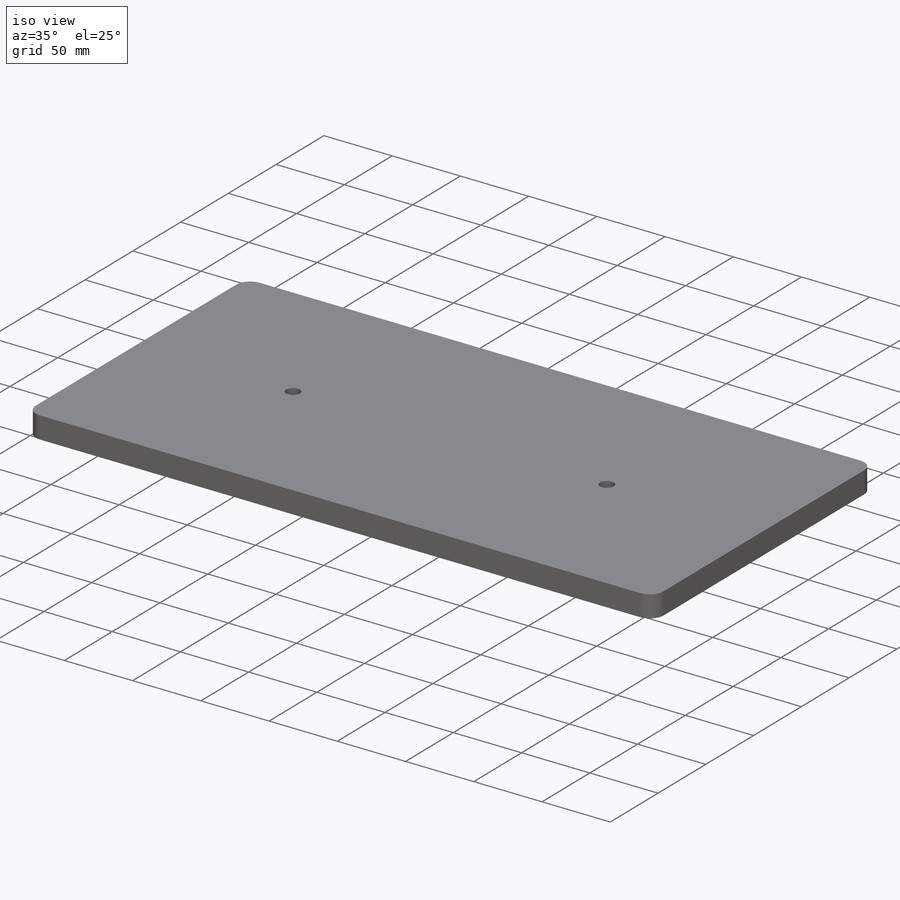
[diagram: iso view]
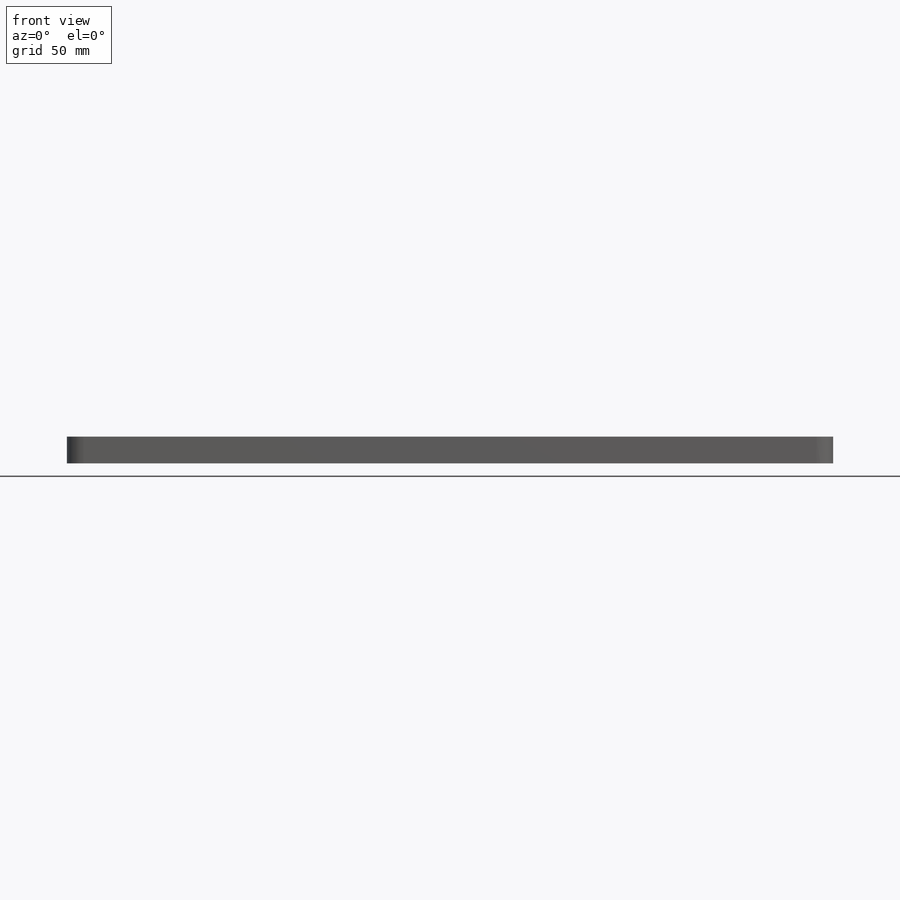
[diagram: front view]
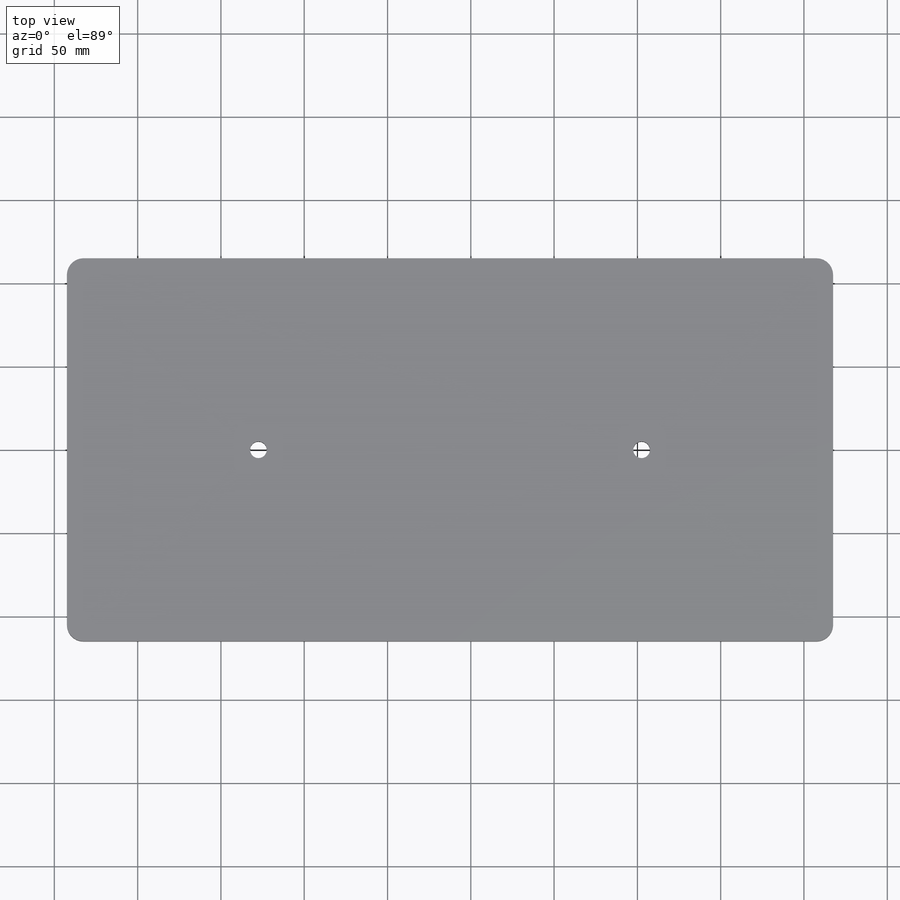
[diagram: top view]
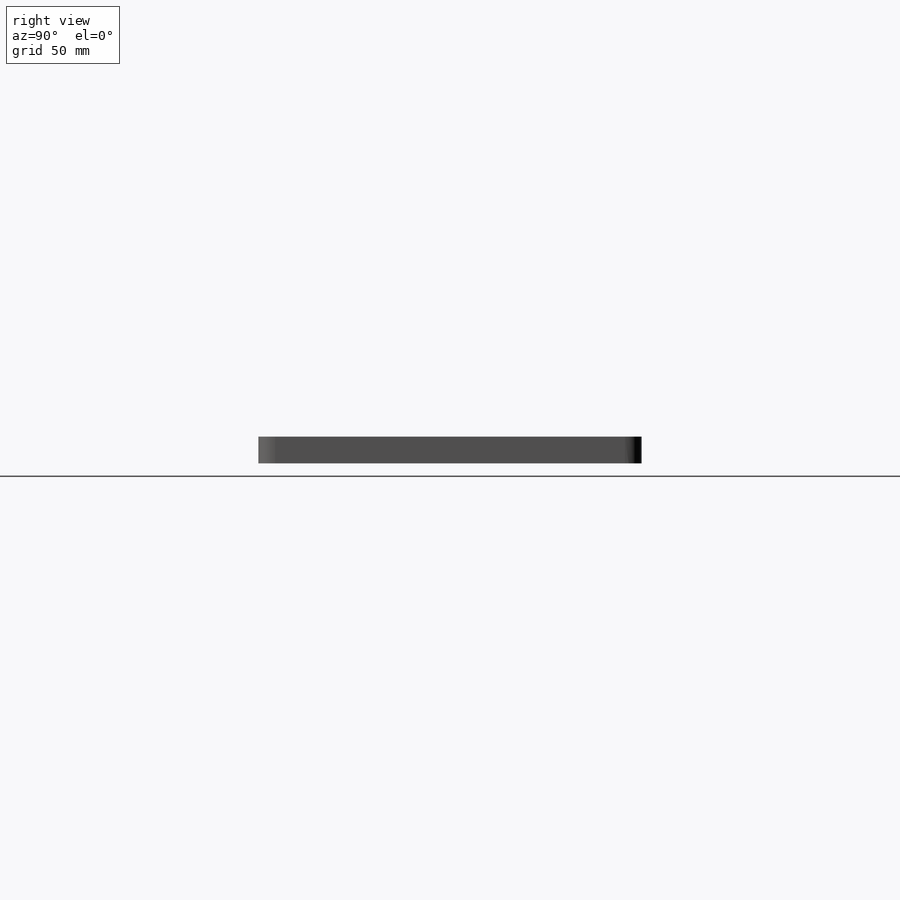
[diagram: right view]
SOLIDWORKS PART (.sldprt)
format: sldprt  version: not decoded by parser v0  size: 1,433,088 bytes
history: native  units: mm
features: sketch x15, extrude x9, plane x6, cut_extrude x4, shell x4, material x1, fillet x1 (+10 scaffold rows collapsed)
feature tree (50):
  scaffold x10  (default folders/planes/origin — collapsed)
  material  "材質 <未指定>"
  plane  "前基準面"
  plane  "上基準面"
  plane  "右基準面"
  sketch  "草圖1"  dims[D6=10.0mm D7=10.0mm D1=230.0mm D2=230.0mm D3=185.0mm D4=460.0mm D5=15.0mm]
  extrude  "填料-伸長1"  Depth=16mm
  plane  "平面1"  Offset=230mm
  plane  "平面2"  Offset=0mm
  sketch  "草圖3"  dims[c1.D3=3.0mm c1.D1=70.0mm c1.D2=40.0mm c2.D3=230.0mm]
  extrude  "填料-伸長3"  Depth=20mm
  fillet  "圓角1"  Radius=3mm
  sketch  "草圖4"  dims[c1.D4=1.0mm c1.D1=12.0mm c1.D2=15.0mm c1.D3=6.0mm c2.D1=~11.999992mm c2.D3=6.0mm]
  cut_extrude  "除料-伸長2"  Depth=23mm
  sketch  "草圖5"  dims[D1=25.0mm D2=337.5mm]
  shell  "薄殼1"  Thickness=3mm
  cut_extrude  "除料-伸長3"  Depth=23mm
  sketch  "草圖2"  dims[D1=20.0mm 8=8.0mm]
  extrude  "填料-伸長11"  Depth=290mm
  extrude  "填料-伸長12"  [1 undecoded]
  sketch  "草圖1<4>"  dims[D1=16.0mm]
  sketch  "草圖7"  dims[D1=20.1mm D2=32.0mm D3=36.0mm D4=36.0mm D5=16.01mm]
  sketch  "草圖8"  dims[c1.D1=20.1mm c1.D2=32.0mm c1.D3=32.0mm c1.D4=28.0mm c1.D5=28.0mm c2.D3=16.01mm]
  extrude  "填料-伸長13"  Depth=30mm
  extrude  "填料-伸長14"  [1 undecoded]
  sketch  "草圖8<2>"  dims[D1=30.0mm D19=30.0mm]
  sketch  "草圖9"  dims[D1=20.0mm D2=32.0mm D3=26.0mm D4=26.0mm]
  extrude  "填料-伸長15"  Depth=30mm
  extrude  "填料-伸長16"  [1 undecoded]
  sketch  "草圖9<2>"  dims[D1=30.0mm D19=120.0mm]
  sketch  "草圖11"
  extrude  "填料-伸長17"  [1 undecoded]
  shell  "圓角2"  Thickness=1mm
  shell  "圓角3"  Thickness=1mm
  shell  "圓角4"  Thickness=1mm
  plane  "平面3"  Offset=12mm
  sketch  "草圖12"
  sketch  "草圖13"  dims[D1=10.0mm D2=115.0mm]
  cut_extrude  "除料-伸長5"  [1 undecoded]
  sketch  "草圖15"  dims[c1.D2=4.0mm c1.D3=4.0mm c1.D4=4.0mm c1.D1=24.0mm c2.D4=60.0mm c2.D5=~79.865418mm c3.D4=80.0mm c3.D5=~385.159551mm c3.D1=24.0mm c3.D2=80.0mm]
  cut_extrude  "除料-伸長9"  [1 undecoded]
decode coverage: 25 of 33 modeling features carry decoded parameters
note: ~ marks probable driven/reference dimensions
note: 6 parameter values undecoded
summary: no parameter record found for 6 features
note: suppression state not decoded; provenance and decode notes live in map.json
